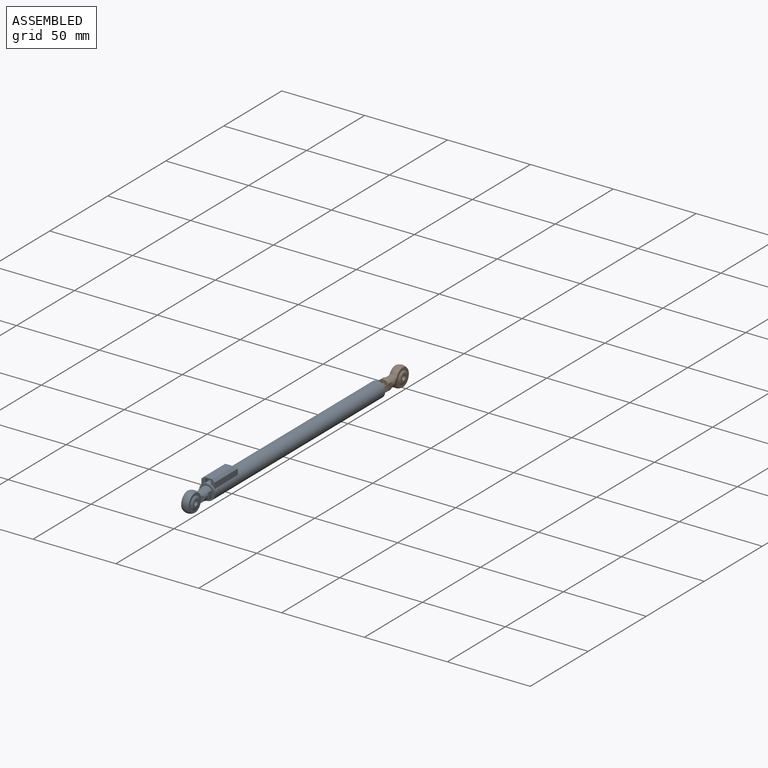
[diagram: assembled view]
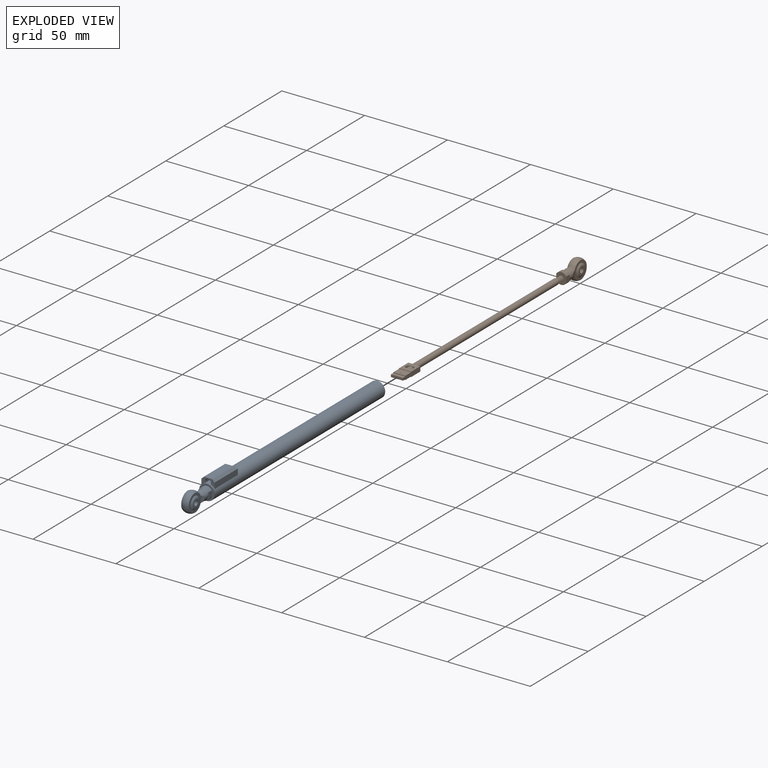
[diagram: exploded view]
GUIDED TOUR — MATED ASSEMBLY WITH SUBASSEMBLIES (Onshape document 57600a2ce4b0f5850b23be8d, AutoMate assembly 57600a2ce4b0f5850b23be8d_10d2f476a3a404ebe90e0509_c56ef4af8d43805079e80a9f_default)

This assembly has 10 component occurrences arranged in 2 top-level units: 0 individual components plus 2 subassemblies (S0, S1). The tour has two levels: first the top level, where each subassembly is treated as one rigid unit; then each subassembly is toured internally in its own section (nesting deeper than one subassembly level is flattened into its subassembly's section).

Components are labeled P0..P9 across the whole record; subassembly units are labeled S0..S1. A mate is a constraint between two units; its type names the relative motion it leaves free:
  FASTENED — locks the two components together rigidly (no relative motion),
  SLIDER — leaves translation along the listed axis free.
Axis/direction vectors are unit vectors and 'through' points are millimeter coordinates, both in the assembly's world frame.

TOP-LEVEL MATES (between units; each subassembly's internal mates are listed in its own section)
  1. SLIDER "Slider 1": S1 <-> S0, axis (0.000, -1.000, 0.000) through (-0.16, -10.88, 0.18) mm

TOP-LEVEL ASSEMBLY ORDER
  1. S0 — the base component [order verified]
  2. S1 [order verified]
Order-tag legend:
  [order verified] — this step's position reverses a verified removal order: the component was checked to insert without passing through the ones already placed.

Of the 10 component occurrences, 5 carry the full construction recipe — the FeatureScript program that regenerates the part's solid from scratch; the rest are supplied as boundary geometry only. Each toured unit is shown spotlighted twice — assembled, then exploded with a leader line back to its socket (green = recipe-attached component, orange = geometry-only, blue = subassembly unit; the rest desaturated gray).
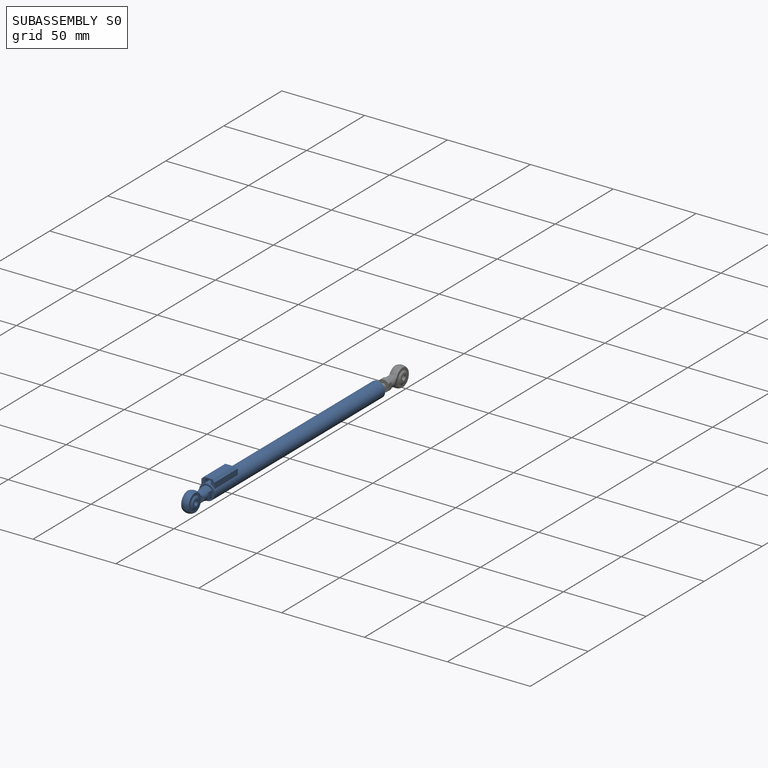
[diagram: subassembly S0 — assembled]
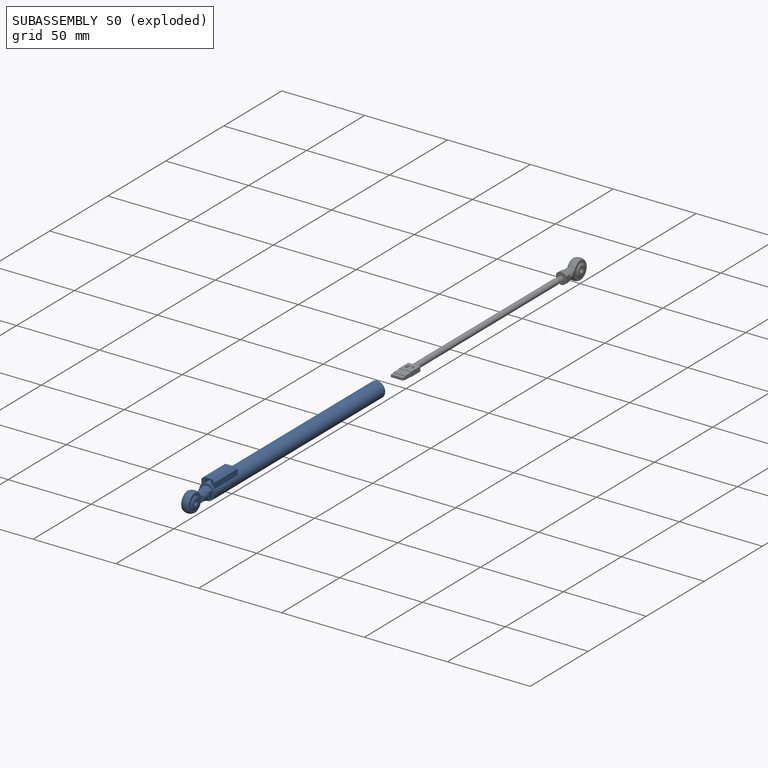
[diagram: subassembly S0 — exploded]
SUBASSEMBLY S0 — 7 components (P0, P3, P4, P5, P6, P7, P9), of which 4 recipe-attached; toured below.
Held by: SLIDER mate "Slider 1" to S1.
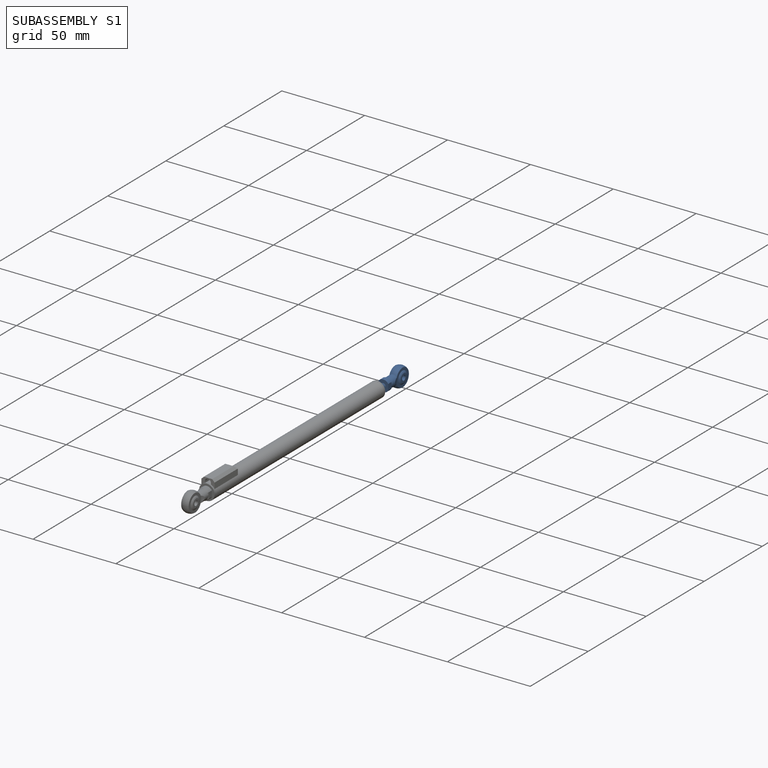
[diagram: subassembly S1 — assembled]
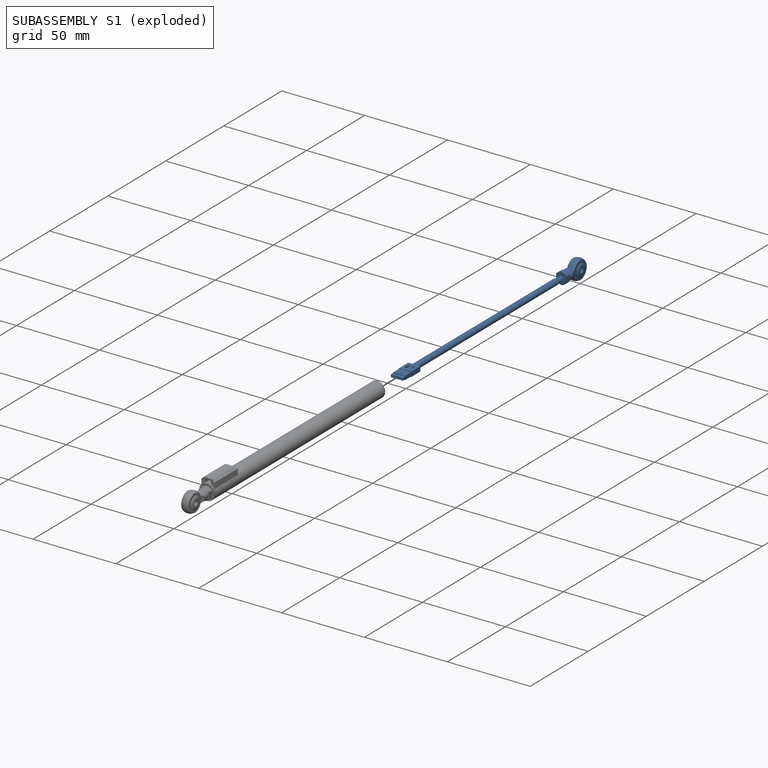
[diagram: subassembly S1 — exploded]
SUBASSEMBLY S1 — 3 components (P1, P2, P8), of which 1 recipe-attached; toured below.
Held by: SLIDER mate "Slider 1" to S0.
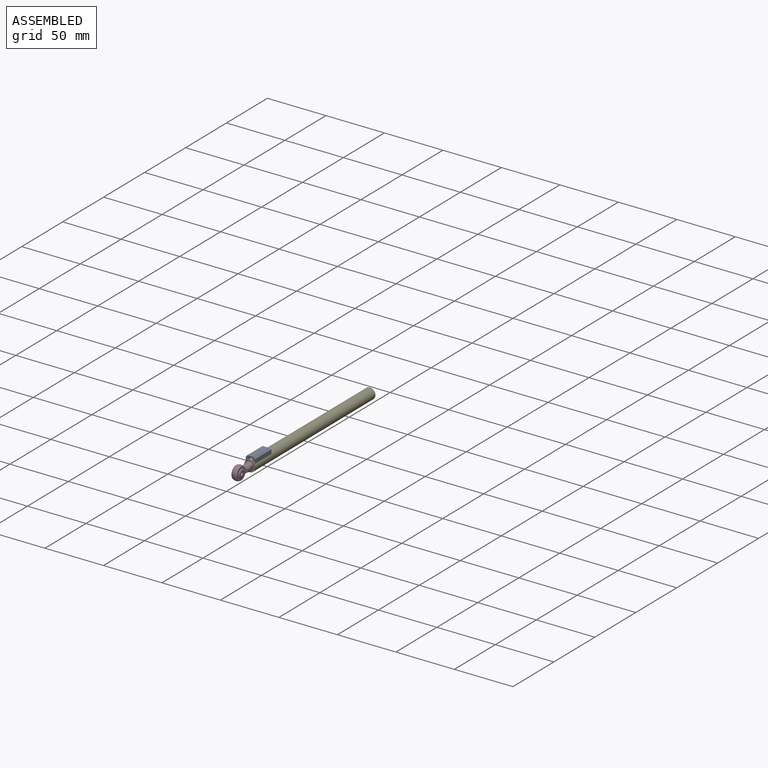
[diagram: subassembly S0 — assembled view]
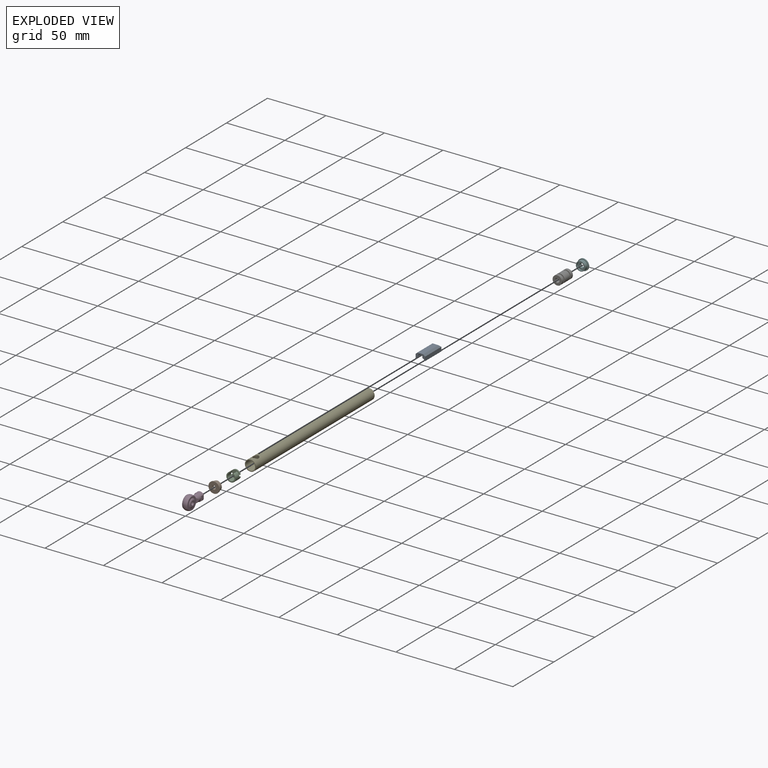
[diagram: subassembly S0 — exploded view]
SUBASSEMBLY S0 TOUR — 7 components, shown here in isolation at its own camera.

INTERNAL MATES
  1. FASTENED "Fastened 5": P6 <-> P9, direction (0.000, 1.000, 0.000) through (-0.16, 106.62, 0.18) mm
  2. FASTENED "Fastened 1": P0 <-> P3, direction (0.000, -1.000, 0.000) through (-0.16, -20.38, 0.18) mm
  3. FASTENED "Fastened 6": P7 <-> P6, direction (0.000, -1.000, 0.000) through (-0.16, 124.62, 0.18) mm
  4. FASTENED "Fastened 4": P3 <-> P5, direction (0.000, -1.000, 0.000) through (-0.16, -21.38, 0.18) mm
  5. FASTENED "Fastened 3": P6 <-> P3, direction (0.000, -1.000, 0.000) through (-0.16, -20.38, 0.18) mm
  6. FASTENED "Fastened 2": P4 <-> P3, direction (0.000, -1.000, 0.000) through (-0.16, -17.38, 0.18) mm
  7. FASTENED "Fastened 1": P0 <-> P3, direction (0.000, -1.000, 0.000) through (-0.16, -20.38, 0.18) mm
  8. FASTENED "Fastened 3": P6 <-> P3, direction (0.000, -1.000, 0.000) through (-0.16, -20.38, 0.18) mm
  9. FASTENED "Fastened 4": P3 <-> P5, direction (0.000, -1.000, 0.000) through (-0.16, -21.38, 0.18) mm
  10. FASTENED "Fastened 6": P7 <-> P6, direction (0.000, -1.000, 0.000) through (-0.16, 124.62, 0.18) mm
  11. FASTENED "Fastened 2": P4 <-> P3, direction (0.000, -1.000, 0.000) through (-0.16, -17.38, 0.18) mm
  12. FASTENED "Fastened 5": P6 <-> P9, direction (0.000, 1.000, 0.000) through (-0.16, 106.62, 0.18) mm

ASSEMBLY ORDER (within the subassembly)
  1. P6 — the base component [order heuristic]
  2. P4 — core [order heuristic]
  3. P9 — core [order heuristic]
  4. P3 [order verified]
  5. P7 [order verified]
  6. P0 [order verified]
  7. P5 [order verified]
(P3, P7 verified with a relaxed clearance tolerance: the source model stores slight part interference there.)
Order-tag legend:
  [order verified] — this step's position reverses a verified removal order: the component was checked to insert without passing through the ones already placed.
  [order heuristic] — the first 3 components form the assembly's core: parts whose collision-free extraction could not be verified, listed in mate-graph order.
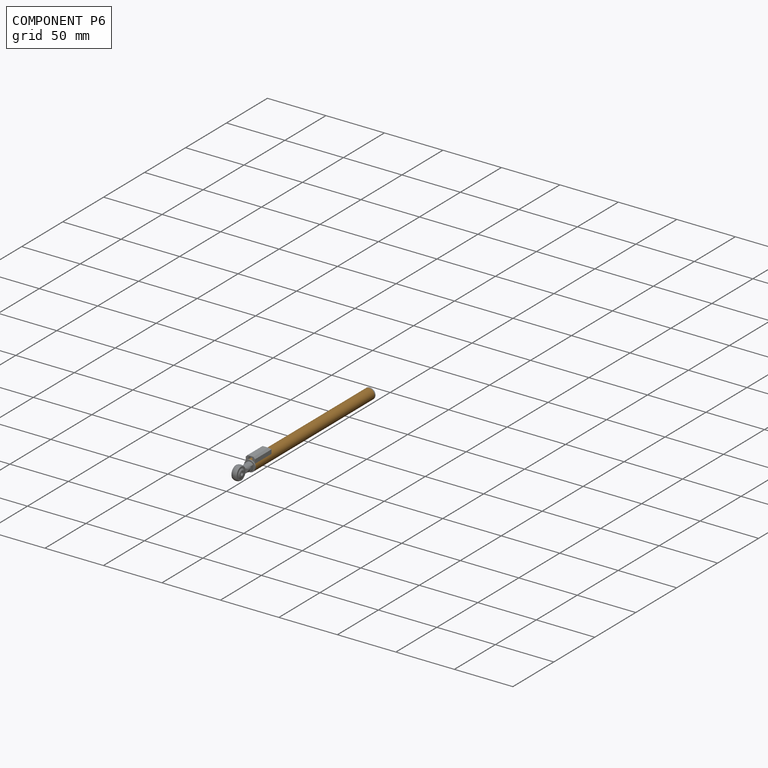
[diagram: component P6 — assembled]
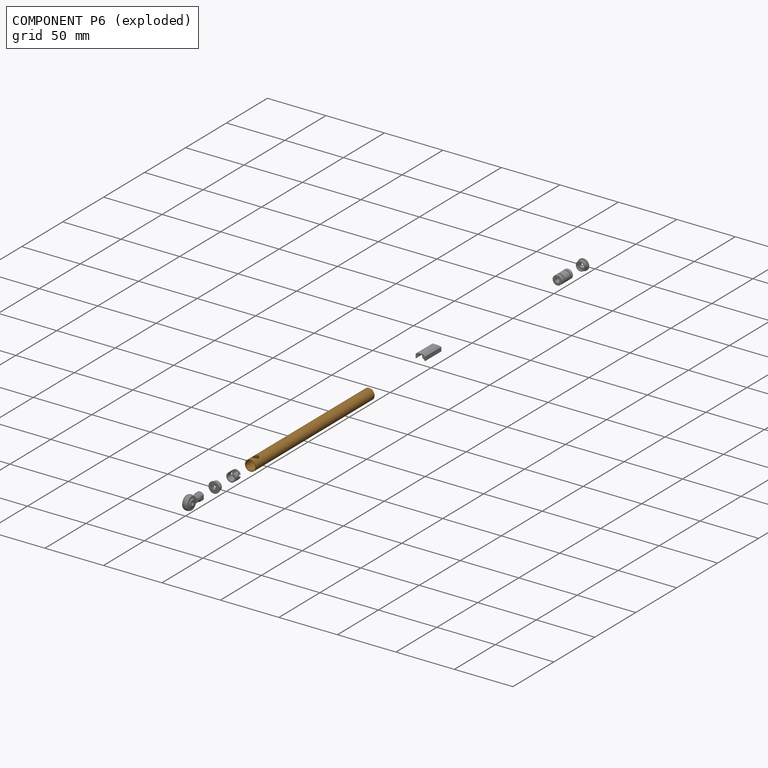
[diagram: component P6 — exploded]
COMPONENT P6 — geometry summary (no construction recipe available for this part):
  bounding box: 145.0 x 9.4 x 9.4 mm
  B-rep topology: 1 solid, 122 faces, 592 edges
  volume: 3434 mm^3 (27% of its bounding box)
  symmetry: 4-fold rotationally symmetric about the y axis; mirror-symmetric across its z mid-plane
Held by: FASTENED mate "Fastened 5" to P9; FASTENED mate "Fastened 6" to P7; FASTENED mate "Fastened 3" to P3; FASTENED mate "Fastened 3" to P3; FASTENED mate "Fastened 6" to P7; FASTENED mate "Fastened 5" to P9.
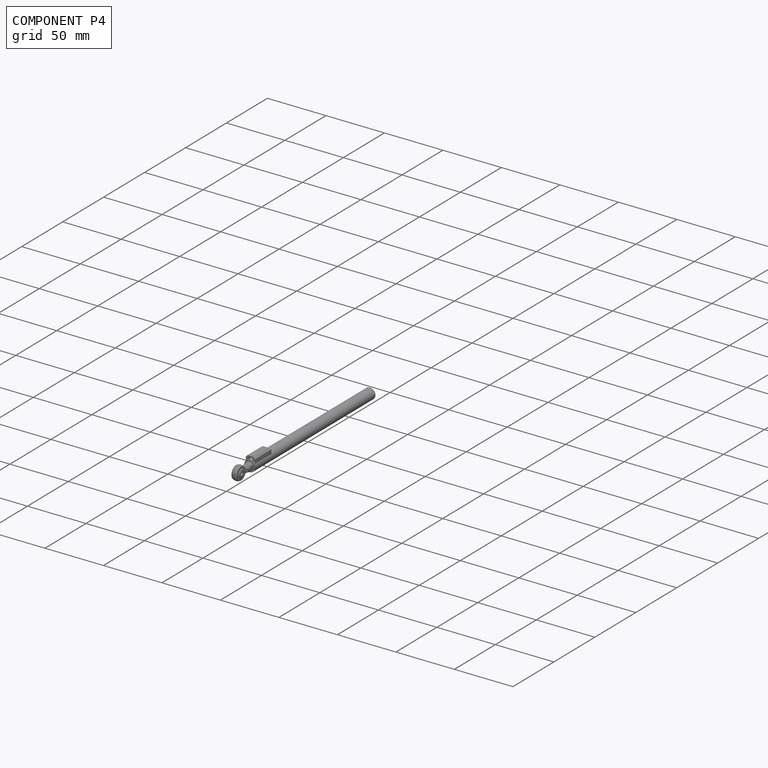
[diagram: component P4 — assembled]
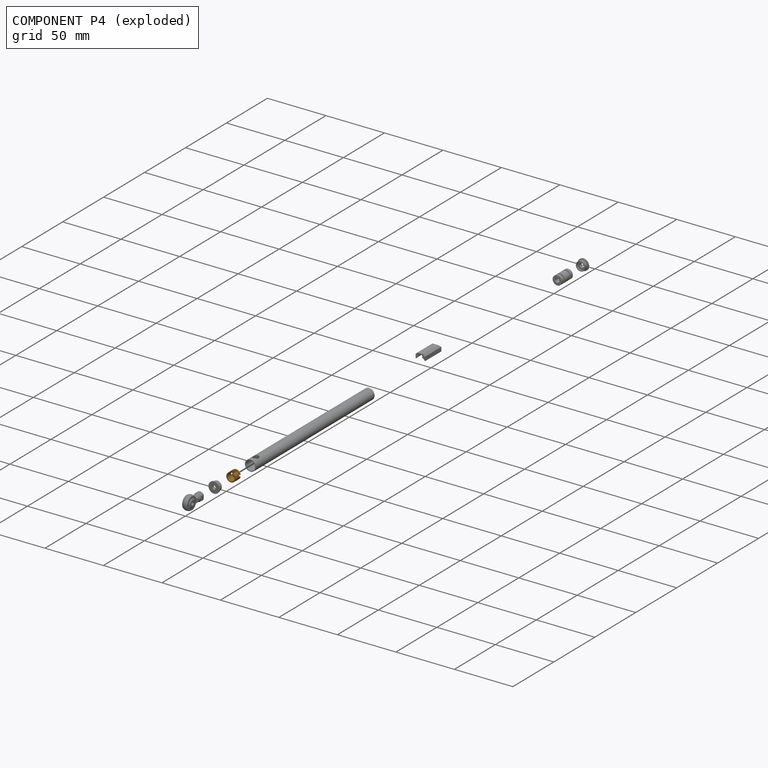
[diagram: component P4 — exploded]
COMPONENT P4 — geometry summary (no construction recipe available for this part):
  bounding box: 7.9 x 7.9 x 6.5 mm
  B-rep topology: 1 solid, 16 faces, 84 edges
  volume: 129 mm^3 (32% of its bounding box)
  symmetry: mirror-symmetric across its x mid-plane
Held by: FASTENED mate "Fastened 2" to P3; FASTENED mate "Fastened 2" to P3.
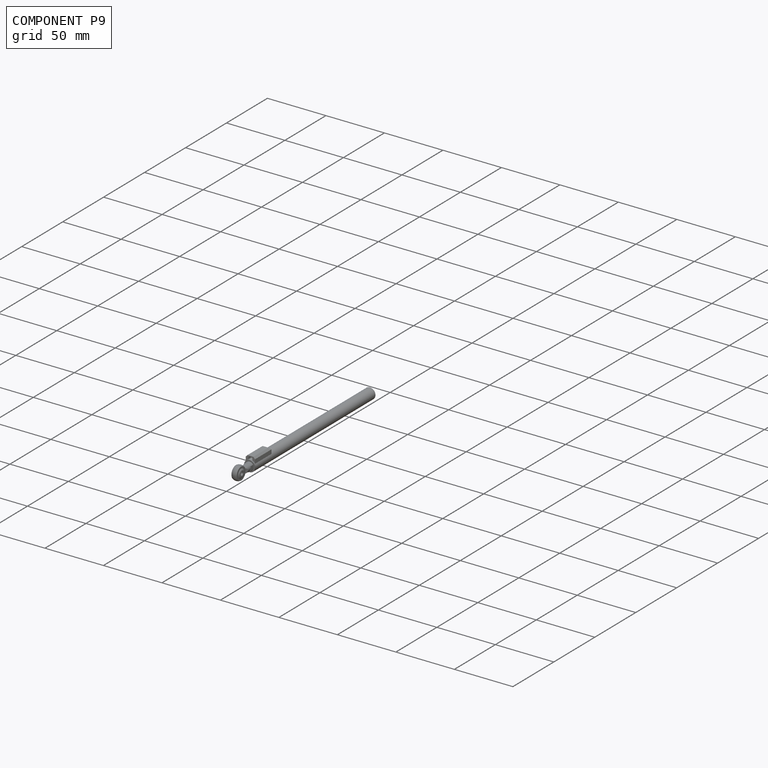
[diagram: component P9 — assembled]
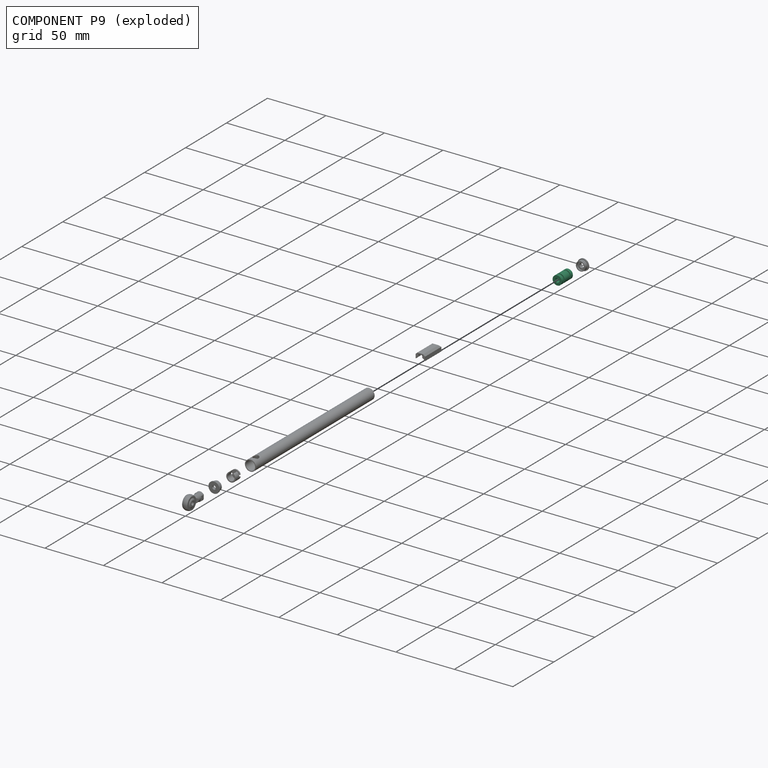
[diagram: component P9 — exploded]
COMPONENT P9 — recipe-attached (CADFS 00157070, mesh-verified: the recipe's output STEP matches this component's geometry to below the mesh-comparison resolution (tessellation chordal tolerance ~0.0263 mm)).
Held by: FASTENED mate "Fastened 5" to P6; FASTENED mate "Fastened 5" to P6.
Construction recipe (FeatureScript — the CAD program that rebuilds this solid; sketch coordinates are in the units given by the * unit suffixes, e.g. mm):

FeatureScript 1511;
import(path : "onshape/std/geometry.fs", version : "1511.0");
import(path : "onshape/std/common.fs", version : "1511.0");
const mm = millimeter;
const VERTEX = EntityType.VERTEX;
const EDGE = EntityType.EDGE;
const FACE = EntityType.FACE;
const BODY = EntityType.BODY;
function v(x, y){return vector(x, y);}
function OD(order){return orderDisambiguation(order);}
function OSD(set){return originalSetDisambiguation(set);}
function TD(topology){return topologyDisambiguation(topology);}
function TDD(query){return trueDependencyDisambiguation(query);}
function sQuery(a, b, c) {return sketchEntityQuery(a, b, c);}

annotation { "Feature Type Name" : "Feature", "Feature Type Description" : "" }
export const myFeature = defineFeature(function(context is Context, id is Id, definition is map)
    precondition{}
    {
        {
            var Q0;
            Q0=qCreatedBy(makeId("Right.planeOp"),FACE);
            var sketch = newSketch(context, id + "F0", { "sketchPlane" : qUnion([Q0])});
            skLineSegment(sketch, "E0", {"start": v(11.47, 0) * mm, "end": v(0, 0) * mm, "construction": true});
            skLineSegment(sketch, "E1", {"start": v(12.1, 1.85) * mm, "end": v(0, 1.85) * mm});
            skLineSegment(sketch, "E2", {"start": v(12.1, 1.85) * mm, "end": v(12.1, 3.25) * mm});
            skLineSegment(sketch, "E3", {"start": v(13.5, 3.25) * mm, "end": v(12.1, 3.25) * mm});
            skLineSegment(sketch, "E4", {"start": v(13.5, 3.25) * mm, "end": v(13.5, 3.95) * mm});
            skLineSegment(sketch, "E5", {"start": v(11, 3.95) * mm, "end": v(13.5, 3.95) * mm});
            skLineSegment(sketch, "E6", {"start": v(11, 3.95) * mm, "end": v(11, 2.95) * mm});
            skLineSegment(sketch, "E7", {"start": v(10, 2.95) * mm, "end": v(11, 2.95) * mm});
            skLineSegment(sketch, "E8", {"start": v(2.5, 2.95) * mm, "end": v(2.5, 3.95) * mm});
            skLineSegment(sketch, "E9", {"start": v(0, 3.95) * mm, "end": v(2.5, 3.95) * mm});
            skLineSegment(sketch, "E10", {"start": v(0, 3.95) * mm, "end": v(0, 1.85) * mm});
            skLineSegment(sketch, "E11", {"start": v(3.5, 2.95) * mm, "end": v(3.5, 3.95) * mm});
            skLineSegment(sketch, "E12", {"start": v(3.5, 3.95) * mm, "end": v(10, 3.95) * mm});
            skLineSegment(sketch, "E13", {"start": v(10, 3.95) * mm, "end": v(10, 2.95) * mm});
            skLineSegment(sketch, "E14.trimOffspring", {"start": v(3.5, 2.95) * mm, "end": v(2.5, 2.95) * mm});
            skSolve(sketch);
        }
        {
            var Q0;
            Q0=makeQuery(id+"F0.imprint","IMPRINT",FACE,{"disambiguationData":[TD([[makeQuery(id+"F0.imprint","IMPRINT",EDGE,{"derivedFrom":sQuery(id+"F0.wireOp",EDGE,"E1")}),-1.0]])]});
            var Q1;
            Q1=sQuery(id+"F0.wireOp",EDGE,"E0");
            revolve(context, id + "F1", {"entities" : qUnion([Q0]), "axis" : qUnion([Q1]), "revolveType" : RevolveType.FULL});
        }
    });
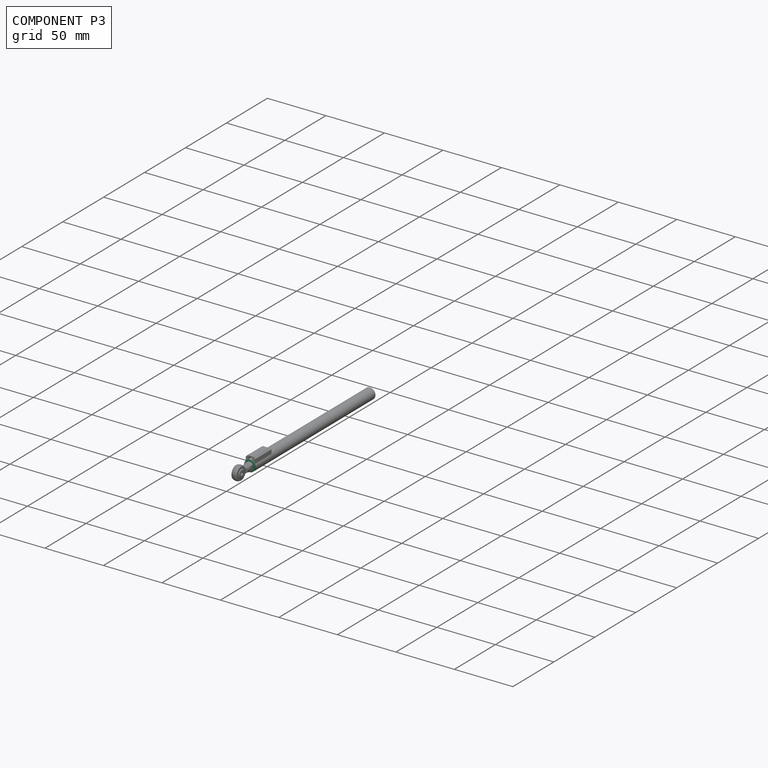
[diagram: component P3 — assembled]
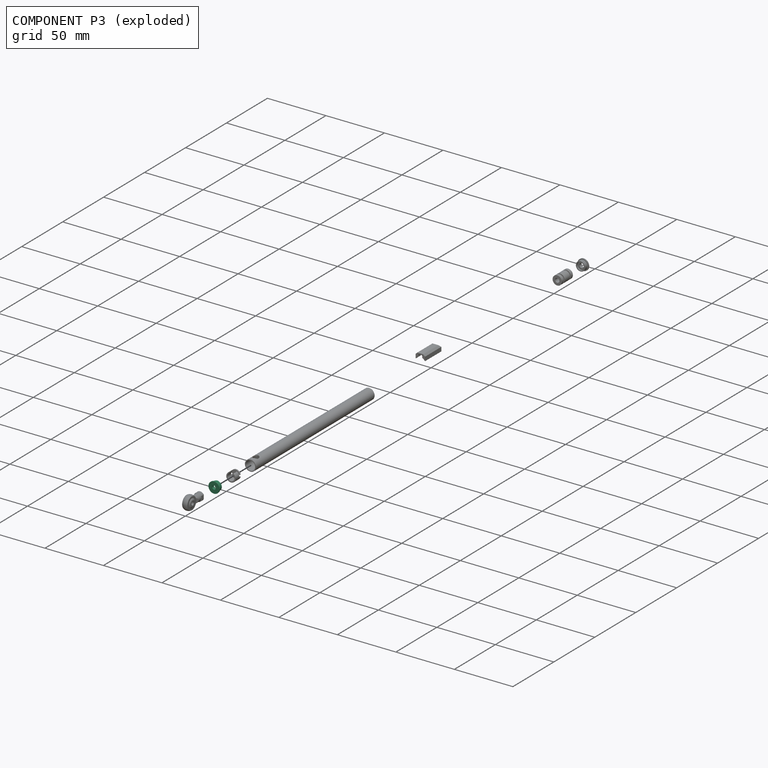
[diagram: component P3 — exploded]
COMPONENT P3 — recipe-attached (CADFS 00160693, mesh-verified: the recipe's output STEP matches this component's geometry to below the mesh-comparison resolution (tessellation chordal tolerance ~0.0208 mm)).
Held by: FASTENED mate "Fastened 1" to P0; FASTENED mate "Fastened 4" to P5; FASTENED mate "Fastened 3" to P6; FASTENED mate "Fastened 2" to P4; FASTENED mate "Fastened 1" to P0; FASTENED mate "Fastened 3" to P6; FASTENED mate "Fastened 4" to P5; FASTENED mate "Fastened 2" to P4.
Construction recipe (FeatureScript — the CAD program that rebuilds this solid; sketch coordinates are in the units given by the * unit suffixes, e.g. mm):

FeatureScript 1511;
import(path : "onshape/std/geometry.fs", version : "1511.0");
import(path : "onshape/std/common.fs", version : "1511.0");
const mm = millimeter;
const VERTEX = EntityType.VERTEX;
const EDGE = EntityType.EDGE;
const FACE = EntityType.FACE;
const BODY = EntityType.BODY;
function v(x, y){return vector(x, y);}
function OD(order){return orderDisambiguation(order);}
function OSD(set){return originalSetDisambiguation(set);}
function TD(topology){return topologyDisambiguation(topology);}
function TDD(query){return trueDependencyDisambiguation(query);}
function sQuery(a, b, c) {return sketchEntityQuery(a, b, c);}

annotation { "Feature Type Name" : "Feature", "Feature Type Description" : "" }
export const myFeature = defineFeature(function(context is Context, id is Id, definition is map)
    precondition{}
    {
        {
            var Q0;
            Q0=qCreatedBy(makeId("Right.planeOp"),FACE);
            var sketch = newSketch(context, id + "F0", { "sketchPlane" : qUnion([Q0])});
            skLineSegment(sketch, "E0", {"start": v(11.47, 0) * mm, "end": v(0, 0) * mm, "construction": true});
            skLineSegment(sketch, "E1", {"start": v(1.5, 1.6) * mm, "end": v(0, 1.6) * mm});
            skLineSegment(sketch, "E2", {"start": v(1.5, 1.6) * mm, "end": v(1.5, 2.9) * mm});
            skLineSegment(sketch, "E3", {"start": v(4, 2.9) * mm, "end": v(1.5, 2.9) * mm});
            skLineSegment(sketch, "E4", {"start": v(4, 2.9) * mm, "end": v(4, 3.95) * mm});
            skLineSegment(sketch, "E5", {"start": v(1, 3.95) * mm, "end": v(4, 3.95) * mm});
            skLineSegment(sketch, "E6", {"start": v(1, 3.95) * mm, "end": v(1, 4.7) * mm});
            skLineSegment(sketch, "E7", {"start": v(0, 4.7) * mm, "end": v(1, 4.7) * mm});
            skLineSegment(sketch, "E8", {"start": v(0, 4.7) * mm, "end": v(0, 1.6) * mm});
            skSolve(sketch);
        }
        {
            var Q0;
            Q0=makeQuery(id+"F0.imprint","IMPRINT",FACE,{"disambiguationData":[TD([[makeQuery(id+"F0.imprint","IMPRINT",EDGE,{"derivedFrom":sQuery(id+"F0.wireOp",EDGE,"E1")}),-1.0]])]});
            var Q1;
            Q1=sQuery(id+"F0.wireOp",EDGE,"E0");
            revolve(context, id + "F1", {"entities" : qUnion([Q0]), "axis" : qUnion([Q1]), "revolveType" : RevolveType.FULL});
        }
    });
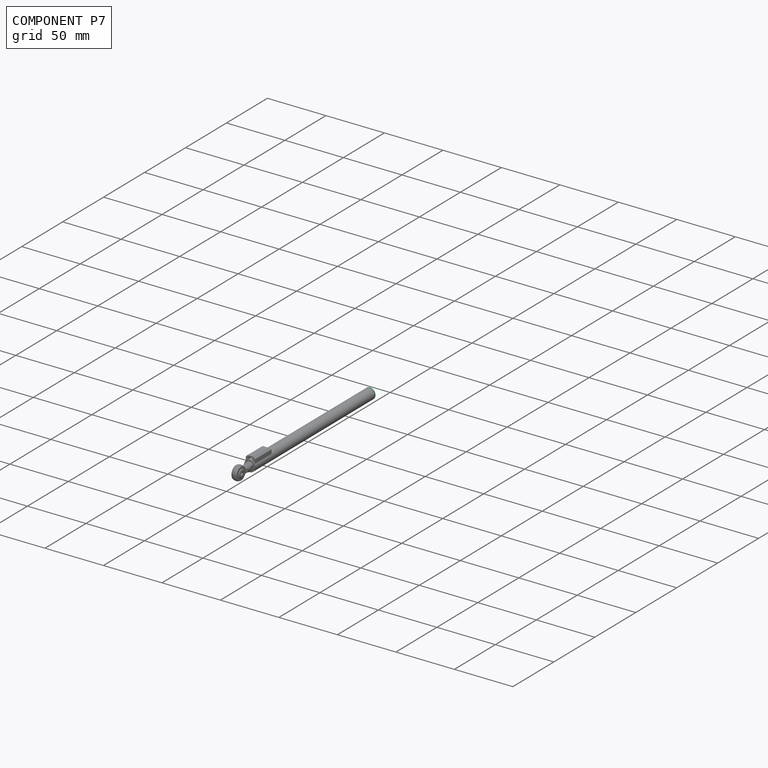
[diagram: component P7 — assembled]
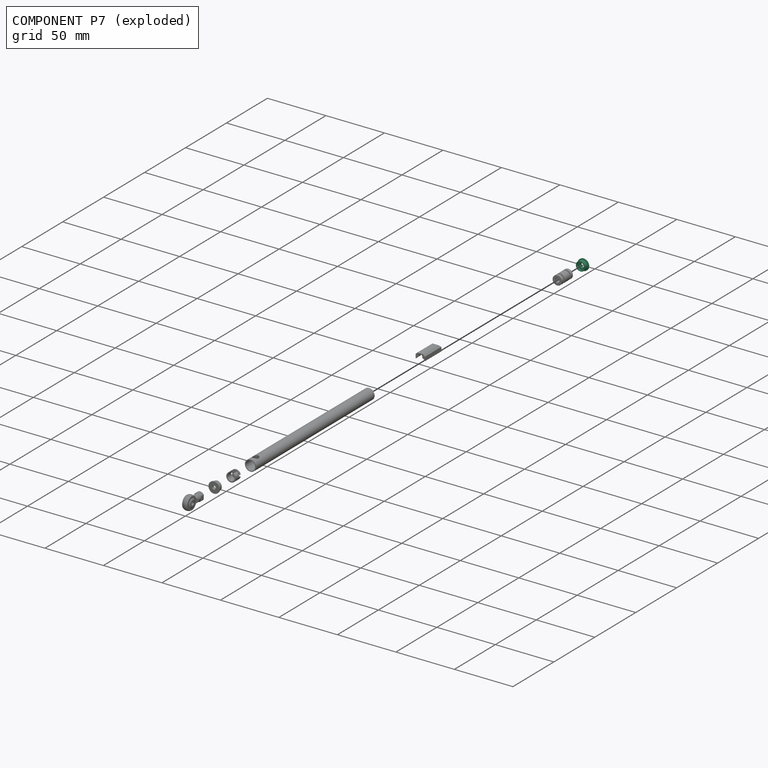
[diagram: component P7 — exploded]
COMPONENT P7 — recipe-attached (CADFS 00157107, mesh-verified: the recipe's output STEP matches this component's geometry to below the mesh-comparison resolution (tessellation chordal tolerance ~0.0208 mm)).
Held by: FASTENED mate "Fastened 6" to P6; FASTENED mate "Fastened 6" to P6.
Construction recipe (FeatureScript — the CAD program that rebuilds this solid; sketch coordinates are in the units given by the * unit suffixes, e.g. mm):

FeatureScript 1511;
import(path : "onshape/std/geometry.fs", version : "1511.0");
import(path : "onshape/std/common.fs", version : "1511.0");
const mm = millimeter;
const VERTEX = EntityType.VERTEX;
const EDGE = EntityType.EDGE;
const FACE = EntityType.FACE;
const BODY = EntityType.BODY;
function v(x, y){return vector(x, y);}
function OD(order){return orderDisambiguation(order);}
function OSD(set){return originalSetDisambiguation(set);}
function TD(topology){return topologyDisambiguation(topology);}
function TDD(query){return trueDependencyDisambiguation(query);}
function sQuery(a, b, c) {return sketchEntityQuery(a, b, c);}

annotation { "Feature Type Name" : "Feature", "Feature Type Description" : "" }
export const myFeature = defineFeature(function(context is Context, id is Id, definition is map)
    precondition{}
    {
        {
            var Q0;
            Q0=qCreatedBy(makeId("Right.planeOp"),FACE);
            var sketch = newSketch(context, id + "F0", { "sketchPlane" : qUnion([Q0])});
            skLineSegment(sketch, "E0", {"start": v(11.47, 0) * mm, "end": v(0, 0) * mm, "construction": true});
            skLineSegment(sketch, "E1", {"start": v(2.6, 1.9) * mm, "end": v(0, 1.9) * mm});
            skLineSegment(sketch, "E2", {"start": v(2.6, 1.9) * mm, "end": v(2.6, 3.25) * mm});
            skLineSegment(sketch, "E3", {"start": v(4, 3.25) * mm, "end": v(2.6, 3.25) * mm});
            skLineSegment(sketch, "E4", {"start": v(4, 3.25) * mm, "end": v(4, 3.95) * mm});
            skLineSegment(sketch, "E5", {"start": v(1, 3.95) * mm, "end": v(4, 3.95) * mm});
            skLineSegment(sketch, "E6", {"start": v(1, 3.95) * mm, "end": v(1, 4.7) * mm});
            skLineSegment(sketch, "E7", {"start": v(0, 4.7) * mm, "end": v(1, 4.7) * mm});
            skLineSegment(sketch, "E8", {"start": v(0, 4.7) * mm, "end": v(0, 1.9) * mm});
            skSolve(sketch);
        }
        {
            var Q0;
            Q0=makeQuery(id+"F0.imprint","IMPRINT",FACE,{"disambiguationData":[TD([[makeQuery(id+"F0.imprint","IMPRINT",EDGE,{"derivedFrom":sQuery(id+"F0.wireOp",EDGE,"E1")}),-1.0]])]});
            var Q1;
            Q1=sQuery(id+"F0.wireOp",EDGE,"E0");
            revolve(context, id + "F1", {"entities" : qUnion([Q0]), "axis" : qUnion([Q1]), "revolveType" : RevolveType.FULL});
        }
    });
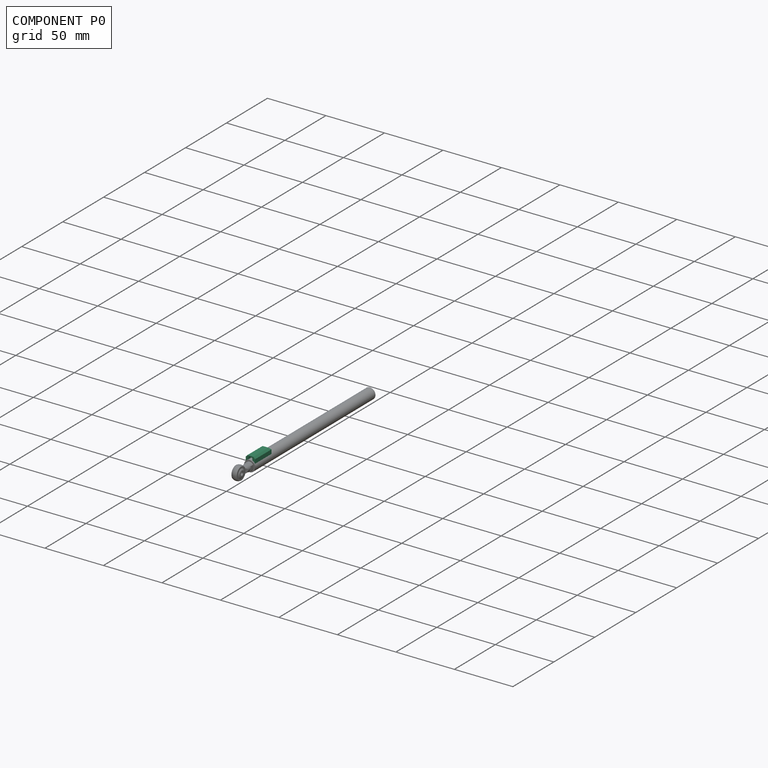
[diagram: component P0 — assembled]
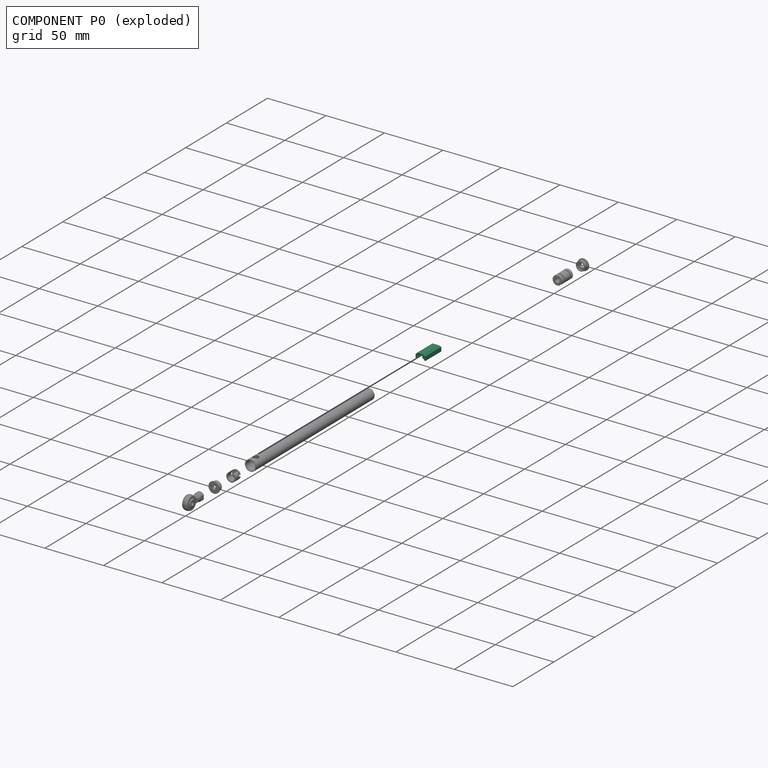
[diagram: component P0 — exploded]
COMPONENT P0 — recipe-attached (CADFS 00165903, mesh-verified: the recipe's output STEP matches this component's geometry to below the mesh-comparison resolution (tessellation chordal tolerance ~0.0332 mm)).
Held by: FASTENED mate "Fastened 1" to P3; FASTENED mate "Fastened 1" to P3.
Construction recipe (FeatureScript — the CAD program that rebuilds this solid; sketch coordinates are in the units given by the * unit suffixes, e.g. mm):

FeatureScript 1511;
import(path : "onshape/std/geometry.fs", version : "1511.0");
import(path : "onshape/std/common.fs", version : "1511.0");
const mm = millimeter;
const VERTEX = EntityType.VERTEX;
const EDGE = EntityType.EDGE;
const FACE = EntityType.FACE;
const BODY = EntityType.BODY;
function v(x, y){return vector(x, y);}
function OD(order){return orderDisambiguation(order);}
function OSD(set){return originalSetDisambiguation(set);}
function TD(topology){return topologyDisambiguation(topology);}
function TDD(query){return trueDependencyDisambiguation(query);}
function sQuery(a, b, c) {return sketchEntityQuery(a, b, c);}

annotation { "Feature Type Name" : "Feature", "Feature Type Description" : "" }
export const myFeature = defineFeature(function(context is Context, id is Id, definition is map)
    precondition{}
    {
        {
            assignVariable(context, id + "F0", {"name" : "Main_Length", "anyValue" : 20});
        }
        {
            assignVariable(context, id + "F1", {"name" : "Bore_Diam", "anyValue" : 3.5});
        }
        {
            assignVariable(context, id + "F2", {"name" : "Bore_Offset", "anyValue" : 0.5});
        }
        {
            assignVariable(context, id + "F3", {"name" : "Chamfer", "anyValue" : 1.5});
        }
        {
            var Q0;
            Q0=qCreatedBy(makeId("Front.planeOp"),FACE);
            var sketch = newSketch(context, id + "F4", { "sketchPlane" : qUnion([Q0])});
            skArc(sketch, "E0", {"start": v(4, 2.47) * mm, "mid": v(0, 4.7) * mm, "end": v(-4, 2.47) * mm});
            skLineSegment(sketch, "E1.bottom", {"start": v(4, 7.47) * mm, "end": v(-4, 7.47) * mm});
            skLineSegment(sketch, "E1.left", {"start": v(4, 7.47) * mm, "end": v(4, 2.47) * mm});
            skLineSegment(sketch, "E1.right", {"start": v(-4, 7.47) * mm, "end": v(-4, 2.47) * mm});
            skPoint(sketch, "E1.middle", {"position": v(0, 4.97) * mm});
            skArc(sketch, "E2", {"start": v(1.75, 5.22) * mm, "mid": v(0, 6.97) * mm, "end": v(-1.75, 5.22) * mm});
            skLineSegment(sketch, "E3", {"start": v(-1.75, 5.22) * mm, "end": v(-1.75, 4.36) * mm});
            skLineSegment(sketch, "E4", {"start": v(1.75, 5.22) * mm, "end": v(1.75, 4.36) * mm});
            skSolve(sketch);
        }
        {
            var Q0;
            Q0=makeQuery(id+"F4.imprint","IMPRINT",FACE,{"disambiguationData":[TD([[makeQuery(id+"F4.imprint","IMPRINT",EDGE,{"derivedFrom":sQuery(id+"F4.wireOp",EDGE,"E0")}),-1.0]])]});
            var Q1;
            {var subQ0=sQuery(id+"F4.wireOp",EDGE,"E2");var subQ1=sQuery(id+"F4.wireOp",EDGE,"E0");var subQ2=makeQuery(id+"F4.imprint","INTERSECT",VERTEX,{"disambiguationData":[OD(0.0)],"derivedFrom":[subQ1,subQ0]});Q1=makeQuery(id+"F4.imprint","IMPRINT",FACE,{"disambiguationData":[TD([[makeQuery(id+"F4.imprint","IMPRINT",EDGE,{"disambiguationData":[TD([[subQ2,-1.0]])],"derivedFrom":subQ1}),-1.0]])]});}
            var Q2;
            Q2=makeQuery(id+"F4.imprint","IMPRINT",FACE,{"disambiguationData":[TD([[makeQuery(id+"F4.imprint","IMPRINT",EDGE,{"derivedFrom":sQuery(id+"F4.wireOp",EDGE,"E2")}),1.0]])]});
            extrude(context, id + "F5", {"entities" : qUnion([Q0, Q1, Q2]), "oppositeDirection" : true, "depth" : (getVariable(context, 'Main_Length')) * mm});
        }
        {
            var Q0;
            Q0=makeQuery(id+"F5.opExtrude","SWEPT_EDGE",EDGE,{"disambiguationData":[OSD([sQuery(id+"F4.wireOp",EDGE,"E1.bottom"),sQuery(id+"F4.wireOp",EDGE,"E1.right")])]});
            var Q1;
            Q1=makeQuery(id+"F5.opExtrude","SWEPT_EDGE",EDGE,{"disambiguationData":[OSD([sQuery(id+"F4.wireOp",EDGE,"E1.bottom"),sQuery(id+"F4.wireOp",EDGE,"E1.left")])]});
            chamfer(context, id + "F6", {"entities" : qUnion([Q0, Q1]), "width" : (getVariable(context, 'Chamfer')) * mm, "tangentPropagation" : true});
        }
        {
            var Q0;
            Q0=makeQuery(id+"F5.opExtrude","CAP_EDGE",EDGE,{"disambiguationData":[OSD([sQuery(id+"F4.wireOp",EDGE,"E1.bottom")])],"isStart":false});
            chamfer(context, id + "F7", {"entities" : qUnion([Q0]), "width" : 1.5 * mm, "tangentPropagation" : true});
        }
        {
            var Q0;
            Q0=makeQuery(id+"F5.opExtrude","SWEPT_FACE",FACE,{"disambiguationData":[OSD([sQuery(id+"F4.wireOp",EDGE,"E1.bottom")])]});
            cPlane(context, id + "F8", {"entities" : qUnion([Q0]), "cplaneType" : CPlaneType.OFFSET, "offset" : (getVariable(context, 'Bore_Offset') + getVariable(context, 'Bore_Diam') / 2) * mm, "oppositeDirection" : true, "width" : 150 * mm, "height" : 150 * mm});
        }
        {
            var Q0;
            Q0=qCreatedBy(id+"F8.planeOp",FACE);
            var sketch = newSketch(context, id + "F9", { "sketchPlane" : qUnion([Q0])});
            skLineSegment(sketch, "E5", {"start": v(-1.75, 0) * mm, "end": v(-1.75, 11.25) * mm});
            skLineSegment(sketch, "E6", {"start": v(1.75, 0) * mm, "end": v(1.75, 11.25) * mm});
            skArc(sketch, "E7", {"start": v(1.75, 11.25) * mm, "mid": v(0, 13) * mm, "end": v(-1.75, 11.25) * mm});
            skLineSegment(sketch, "E8", {"start": v(-1.75, 0) * mm, "end": v(1.75, 0) * mm});
            skLineSegment(sketch, "E9", {"start": v(0, 0) * mm, "end": v(0, 13) * mm});
            skSolve(sketch);
        }
        {
            var Q0;
            {var subQ0=sQuery(id+"F9.wireOp",EDGE,"E5");Q0=makeQuery(id+"F9.imprint","IMPRINT",FACE,{"disambiguationData":[TD([[makeQuery(id+"F9.imprint","IMPRINT",EDGE,{"derivedFrom":subQ0}),-1.0]])]});}
            var Q1;
            Q1=sQuery(id+"F9.wireOp",EDGE,"E9");
            revolve(context, id + "F10", {"operationType" : NewBodyOperationType.REMOVE, "entities" : qUnion([Q0]), "axis" : qUnion([Q1]), "revolveType" : RevolveType.FULL, "oppositeDirection" : true});
        }
        {
            var Q0;
            {var subQ0=sQuery(id+"F9.wireOp",EDGE,"E6");Q0=makeQuery(id+"F9.imprint","IMPRINT",FACE,{"disambiguationData":[TD([[makeQuery(id+"F9.imprint","IMPRINT",EDGE,{"derivedFrom":subQ0}),1.0]])]});}
            var Q1;
            {var subQ0=sQuery(id+"F9.wireOp",EDGE,"E5");Q1=makeQuery(id+"F9.imprint","IMPRINT",FACE,{"disambiguationData":[TD([[makeQuery(id+"F9.imprint","IMPRINT",EDGE,{"derivedFrom":subQ0}),-1.0]])]});}
            extrude(context, id + "F11", {"entities" : qUnion([Q0, Q1]), "operationType" : NewBodyOperationType.REMOVE, "endBound" : BoundingType.THROUGH_ALL, "oppositeDirection" : true, "depth" : 25 * mm});
        }
    });
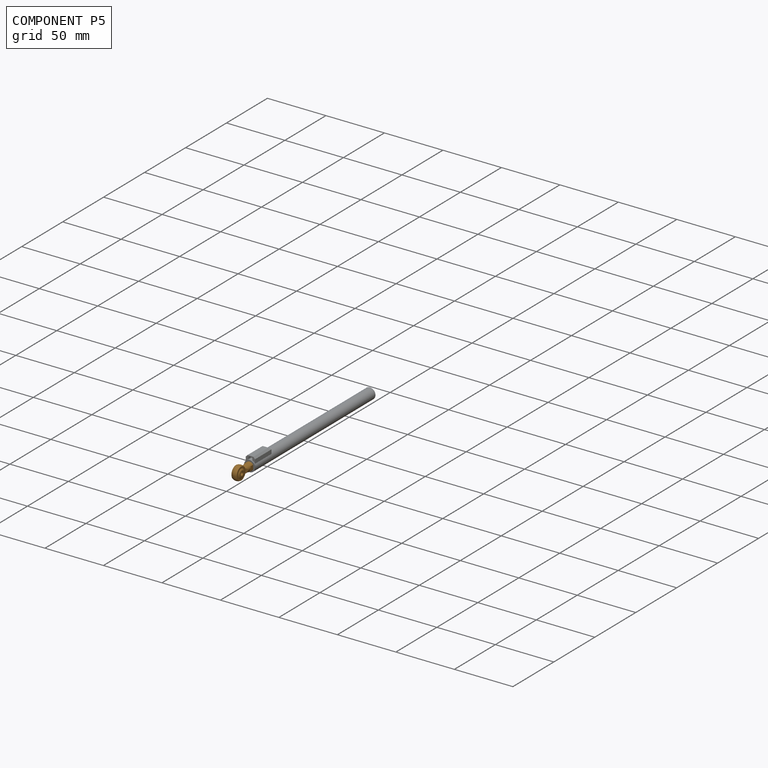
[diagram: component P5 — assembled]
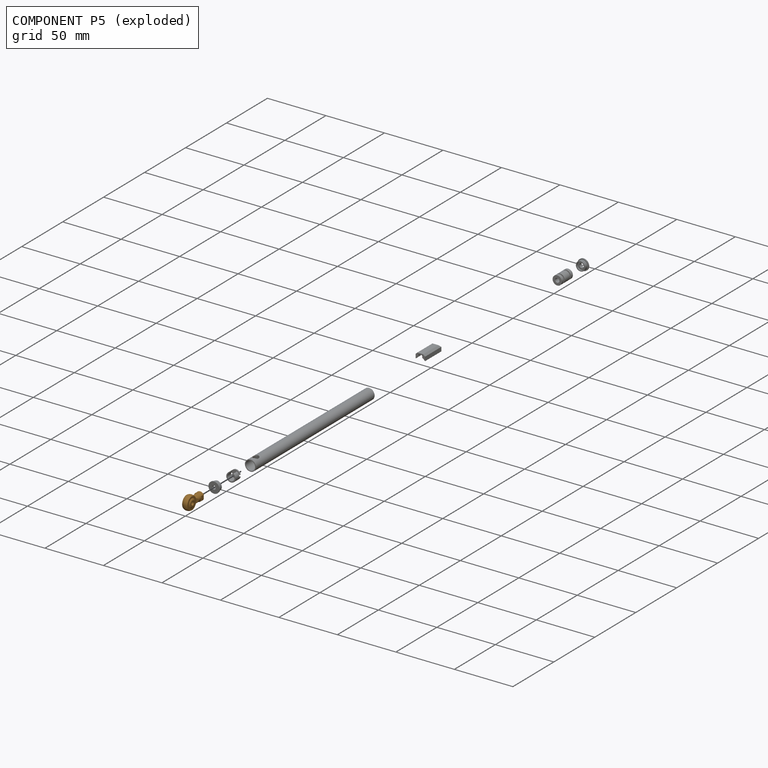
[diagram: component P5 — exploded]
COMPONENT P5 — geometry summary (no construction recipe available for this part):
  bounding box: 18.9 x 10.8 x 6.0 mm
  B-rep topology: 1 solid, 24 faces, 92 edges
  volume: 688 mm^3 (56% of its bounding box)
  symmetry: 2-fold rotationally symmetric about the y axis; mirror-symmetric across its x mid-plane, z mid-plane
Held by: FASTENED mate "Fastened 4" to P3; FASTENED mate "Fastened 4" to P3.
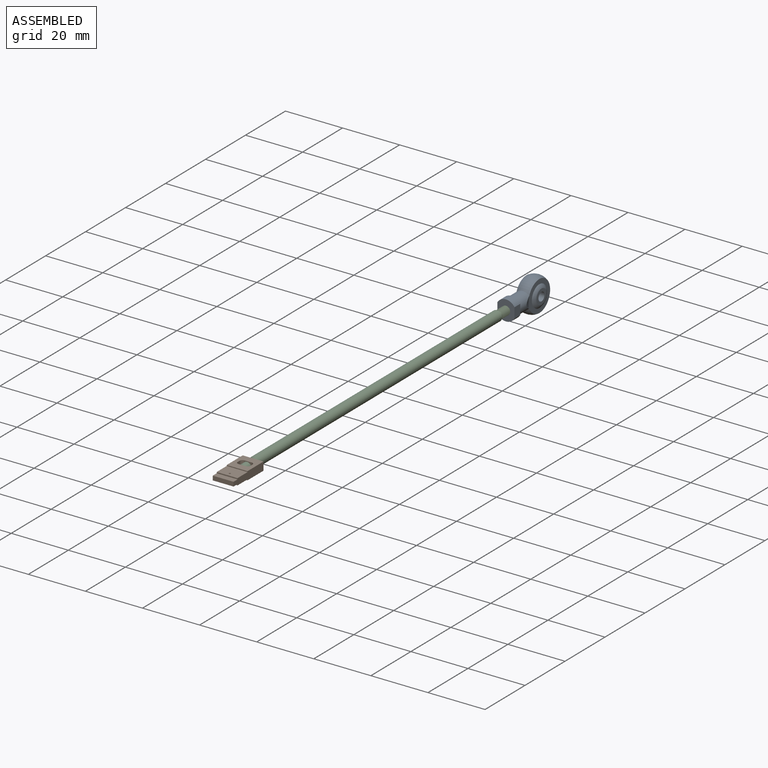
[diagram: subassembly S1 — assembled view]
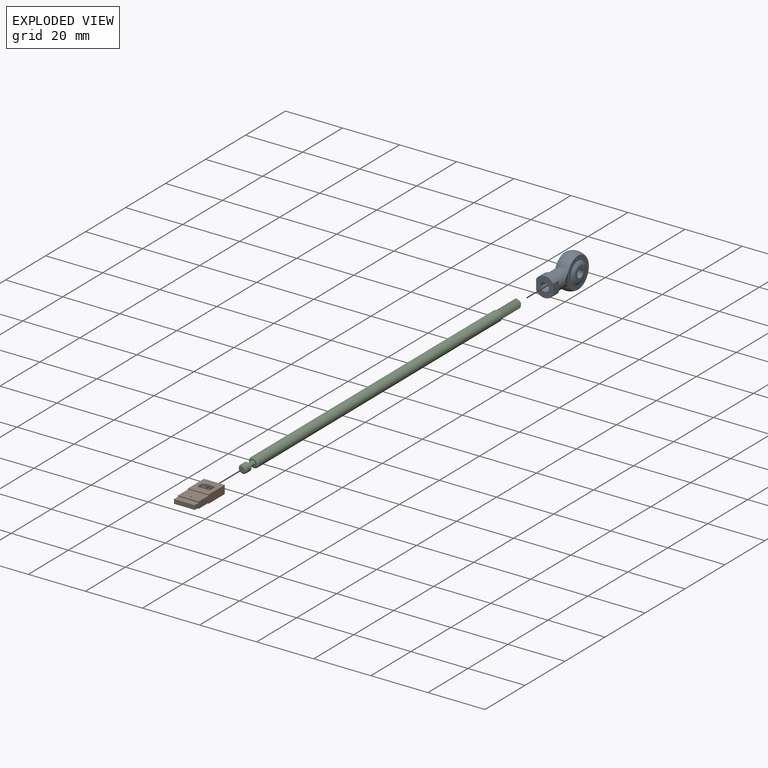
[diagram: subassembly S1 — exploded view]
SUBASSEMBLY S1 TOUR — 3 components, shown here in isolation at its own camera.

INTERNAL MATES
  1. FASTENED "Fastened 2": P8 <-> P2, direction (0.000, -1.000, 0.000) through (-0.16, 4.12, 0.18) mm
  2. FASTENED "Fastened 1": P8 <-> P1, direction (0.000, 1.000, 0.000) through (-0.16, 136.62, 0.18) mm
  3. FASTENED "Fastened 1": P8 <-> P1, direction (0.000, 1.000, 0.000) through (-0.16, 136.62, 0.18) mm
  4. FASTENED "Fastened 2": P8 <-> P2, direction (0.000, -1.000, 0.000) through (-0.16, 4.12, 0.18) mm

ASSEMBLY ORDER (within the subassembly)
  1. P8 — the base component [order heuristic]
  2. P1 — core [order heuristic]
  3. P2 [order verified]
Order-tag legend:
  [order verified] — this step's position reverses a verified removal order: the component was checked to insert without passing through the ones already placed.
  [order heuristic] — the first 2 components form the assembly's core: parts whose collision-free extraction could not be verified, listed in mate-graph order.
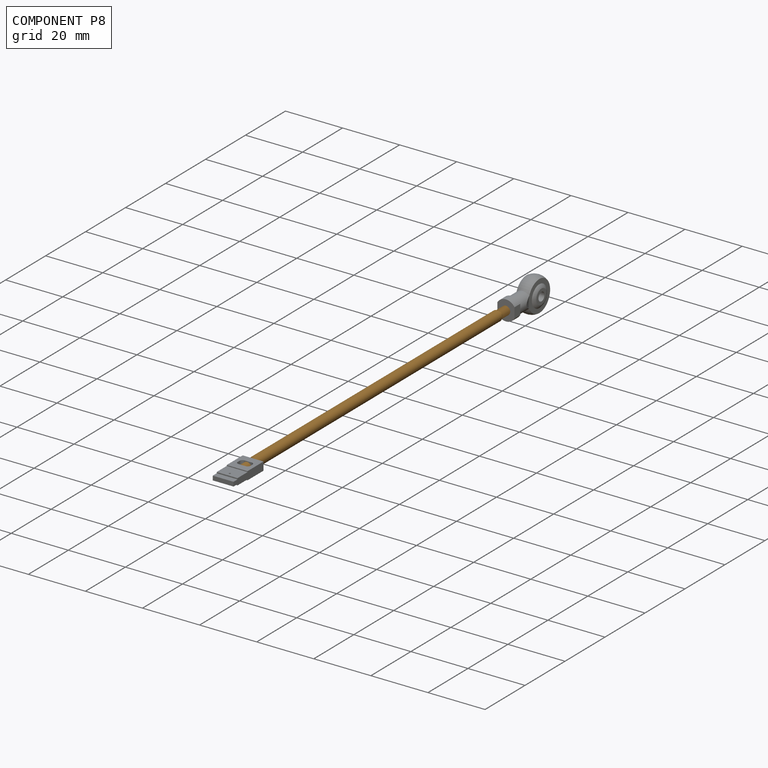
[diagram: component P8 — assembled]
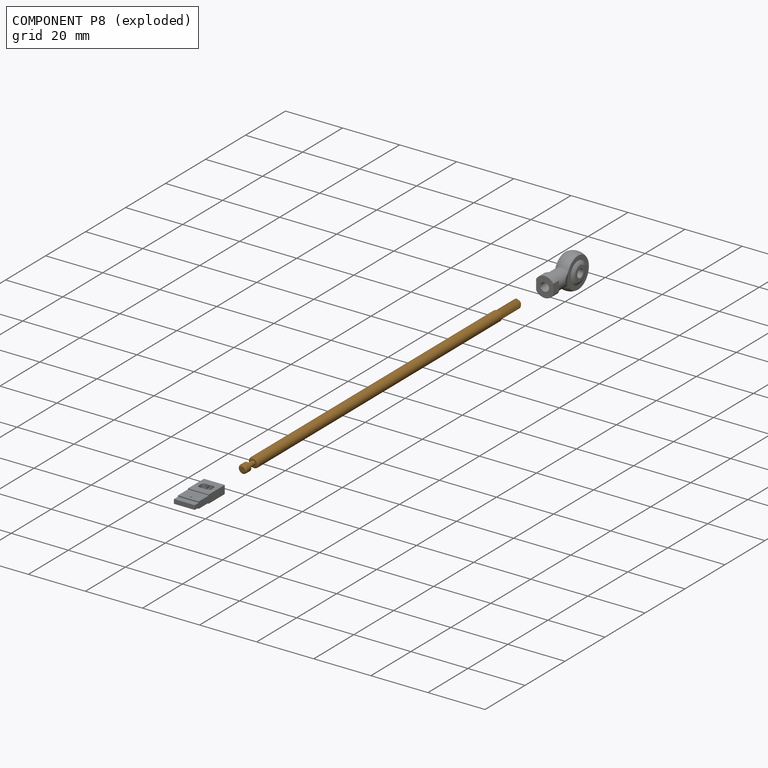
[diagram: component P8 — exploded]
COMPONENT P8 — geometry summary (no construction recipe available for this part):
  bounding box: 138.0 x 3.6 x 3.6 mm
  B-rep topology: 1 solid, 37 faces, 172 edges
  volume: 1321 mm^3 (74% of its bounding box)
  symmetry: revolution-symmetric about the y axis through its bounding-box center; mirror-symmetric across its x mid-plane, z mid-plane
Held by: FASTENED mate "Fastened 2" to P2; FASTENED mate "Fastened 1" to P1; FASTENED mate "Fastened 1" to P1; FASTENED mate "Fastened 2" to P2.
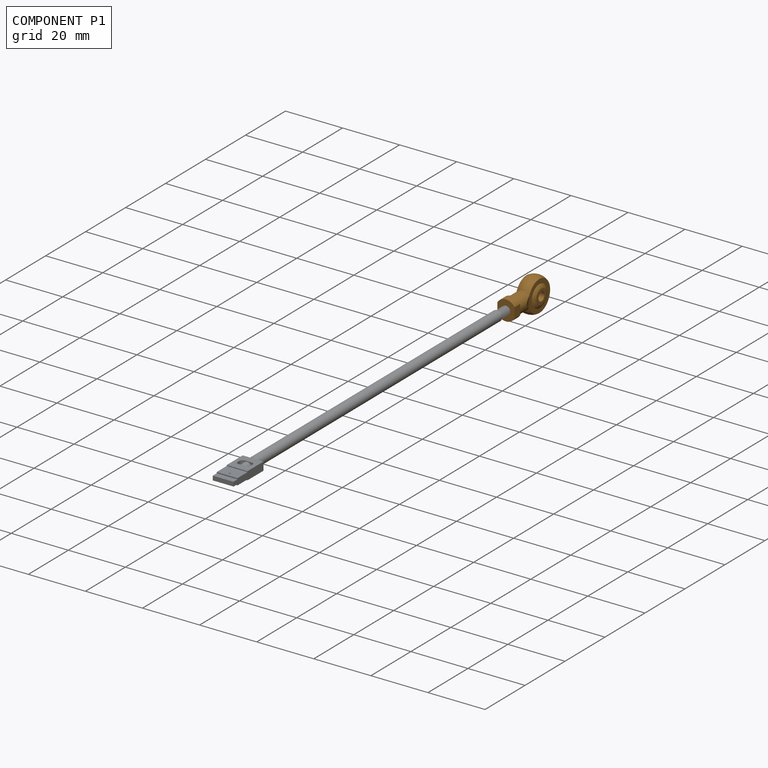
[diagram: component P1 — assembled]
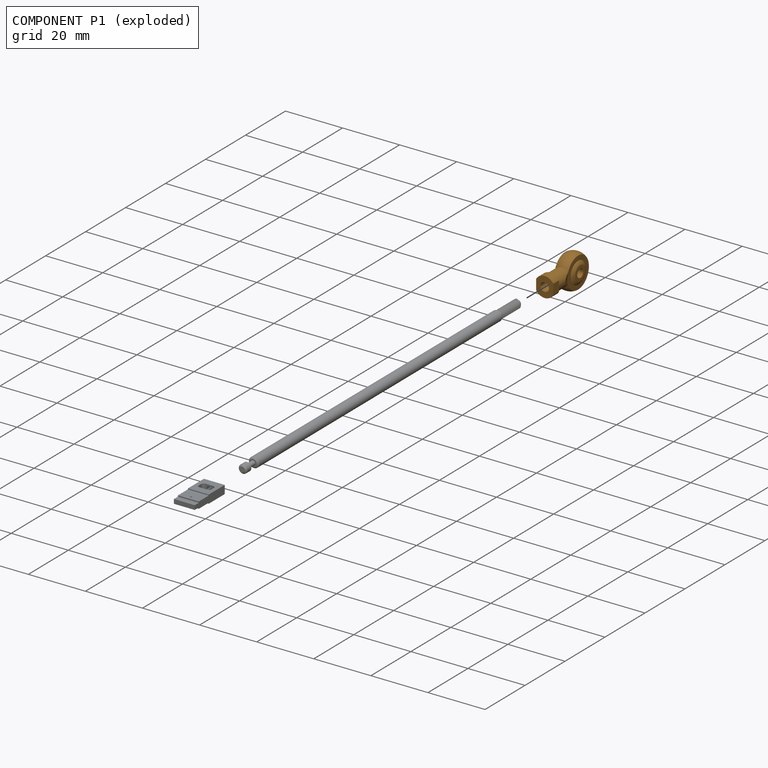
[diagram: component P1 — exploded]
COMPONENT P1 — geometry summary (no construction recipe available for this part):
  bounding box: 18.9 x 10.8 x 6.0 mm
  B-rep topology: 1 solid, 24 faces, 92 edges
  volume: 688 mm^3 (56% of its bounding box)
  symmetry: 2-fold rotationally symmetric about the y axis; mirror-symmetric across its x mid-plane, z mid-plane
Held by: FASTENED mate "Fastened 1" to P8; FASTENED mate "Fastened 1" to P8.
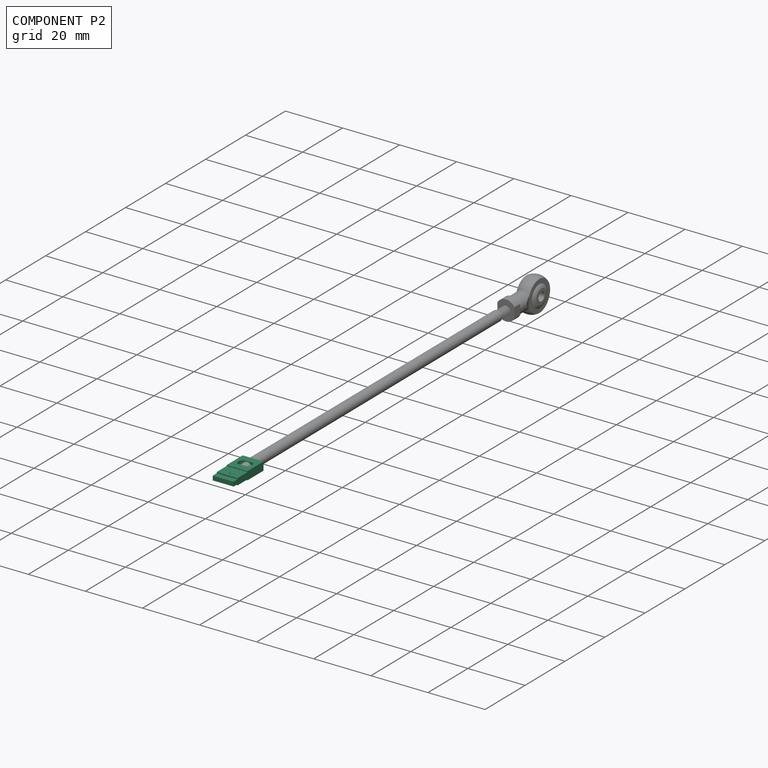
[diagram: component P2 — assembled]
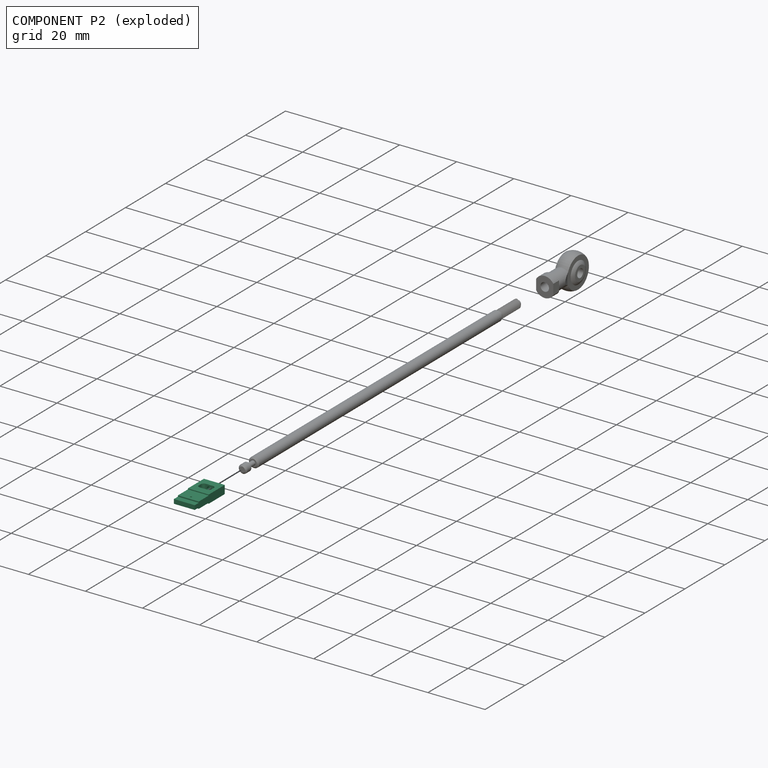
[diagram: component P2 — exploded]
COMPONENT P2 — recipe-attached (CADFS 00161444, mesh-verified: the recipe's output STEP matches this component's geometry to below the mesh-comparison resolution (tessellation chordal tolerance ~0.0254 mm)).
Held by: FASTENED mate "Fastened 2" to P8; FASTENED mate "Fastened 2" to P8.
Construction recipe (FeatureScript — the CAD program that rebuilds this solid; sketch coordinates are in the units given by the * unit suffixes, e.g. mm):

FeatureScript 1511;
import(path : "onshape/std/geometry.fs", version : "1511.0");
import(path : "onshape/std/common.fs", version : "1511.0");
const mm = millimeter;
const VERTEX = EntityType.VERTEX;
const EDGE = EntityType.EDGE;
const FACE = EntityType.FACE;
const BODY = EntityType.BODY;
function v(x, y){return vector(x, y);}
function OD(order){return orderDisambiguation(order);}
function OSD(set){return originalSetDisambiguation(set);}
function TD(topology){return topologyDisambiguation(topology);}
function TDD(query){return trueDependencyDisambiguation(query);}
function sQuery(a, b, c) {return sketchEntityQuery(a, b, c);}

annotation { "Feature Type Name" : "Feature", "Feature Type Description" : "" }
export const myFeature = defineFeature(function(context is Context, id is Id, definition is map)
    precondition{}
    {
        {
            assignVariable(context, id + "F0", {"name" : "Main_Width", "anyValue" : 7.3});
        }
        {
            var Q0;
            Q0=qCreatedBy(makeId("Right.planeOp"),FACE);
            var sketch = newSketch(context, id + "F1", { "sketchPlane" : qUnion([Q0])});
            skLineSegment(sketch, "E0", {"start": v(0, 0) * mm, "end": v(0, 1.45) * mm});
            skLineSegment(sketch, "E1", {"start": v(0, 1.45) * mm, "end": v(8, 1.45) * mm});
            skLineSegment(sketch, "E2", {"start": v(8, 1.45) * mm, "end": v(8, 1.15) * mm});
            skLineSegment(sketch, "E3", {"start": v(8, 1.15) * mm, "end": v(13, 1.15) * mm});
            skLineSegment(sketch, "E4", {"start": v(13, 1.15) * mm, "end": v(13, 0.75) * mm});
            skLineSegment(sketch, "E5", {"start": v(13, 0.75) * mm, "end": v(15, 0.75) * mm});
            skLineSegment(sketch, "E6", {"start": v(15, 0.75) * mm, "end": v(15, 0) * mm});
            skLineSegment(sketch, "E7", {"start": v(0, 0) * mm, "end": v(15, 0) * mm, "construction": true});
            skLineSegment(sketch, "E8.MirrorCS", {"start": v(0, -1.45) * mm, "end": v(8, -1.45) * mm});
            skLineSegment(sketch, "E9.MirrorCS", {"start": v(8, -1.45) * mm, "end": v(8, -1.15) * mm});
            skLineSegment(sketch, "E10.MirrorCS", {"start": v(0, 0) * mm, "end": v(0, -1.45) * mm});
            skLineSegment(sketch, "E11.MirrorCS", {"start": v(13, -0.75) * mm, "end": v(15, -0.75) * mm});
            skLineSegment(sketch, "E12.MirrorCS", {"start": v(15, -0.75) * mm, "end": v(15, 0) * mm});
            skLineSegment(sketch, "E13.MirrorCS", {"start": v(13, -1.15) * mm, "end": v(13, -0.75) * mm});
            skLineSegment(sketch, "E14.MirrorCS", {"start": v(8, -1.15) * mm, "end": v(13, -1.15) * mm});
            skSolve(sketch);
        }
        {
            var Q0;
            Q0=makeQuery(id+"F1.imprint","IMPRINT",FACE,{"disambiguationData":[TD([[makeQuery(id+"F1.imprint","IMPRINT",EDGE,{"derivedFrom":sQuery(id+"F1.wireOp",EDGE,"E0")}),-1.0]])]});
            extrude(context, id + "F2", {"entities" : qUnion([Q0]), "depth" : (getVariable(context, 'Main_Width')) * mm});
        }
        {
            var Q0;
            Q0=makeQuery(id+"F2.opExtrude","SWEPT_FACE",FACE,{"disambiguationData":[OSD([sQuery(id+"F1.wireOp",EDGE,"E1")])]});
            var sketch = newSketch(context, id + "F3", { "sketchPlane" : qUnion([Q0])});
            skCircle(sketch, "E15", {"center": v(3.65, 11.65) * mm, "radius": 0.3 * mm});
            skLineSegment(sketch, "E16.0", {"start": v(7.3, 0) * mm, "end": v(0, 0) * mm});
            skLineSegment(sketch, "E17", {"start": v(3.65, 11.65) * mm, "end": v(3.65, 0) * mm, "construction": true});
            skPoint(sketch, "E17.endSnap0", {"position": v(3.65, 0) * mm});
            skLineSegment(sketch, "E18.bottom", {"start": v(2.4, 2.5) * mm, "end": v(4.9, 2.5) * mm});
            skLineSegment(sketch, "E18.top", {"start": v(2.4, 5.5) * mm, "end": v(4.9, 5.5) * mm});
            skLineSegment(sketch, "E18.left", {"start": v(2.4, 2.5) * mm, "end": v(2.4, 5.5) * mm, "construction": true});
            skLineSegment(sketch, "E18.right", {"start": v(4.9, 2.5) * mm, "end": v(4.9, 5.5) * mm, "construction": true});
            skPoint(sketch, "E18.middle", {"position": v(3.65, 4) * mm});
            skArc(sketch, "E19", {"start": v(1.4, 3.5) * mm, "mid": v(1.7, 2.8) * mm, "end": v(2.4, 2.5) * mm});
            skArc(sketch, "E20", {"start": v(2.4, 5.5) * mm, "mid": v(1.7, 5.2) * mm, "end": v(1.4, 4.5) * mm});
            skLineSegment(sketch, "E21", {"start": v(1.4, 3.5) * mm, "end": v(1.4, 4.5) * mm});
            skArc(sketch, "E22.MirrorCS", {"start": v(4.9, 5.5) * mm, "mid": v(5.6, 5.2) * mm, "end": v(5.9, 4.5) * mm});
            skLineSegment(sketch, "E23.MirrorCS", {"start": v(5.9, 3.5) * mm, "end": v(5.9, 4.5) * mm});
            skArc(sketch, "E24.MirrorCS", {"start": v(5.9, 3.5) * mm, "mid": v(5.6, 2.8) * mm, "end": v(4.9, 2.5) * mm});
            skSolve(sketch);
        }
        {
            var Q0;
            Q0=makeQuery(id+"F3.imprint","IMPRINT",FACE,{"disambiguationData":[TD([[makeQuery(id+"F3.imprint","IMPRINT",EDGE,{"derivedFrom":sQuery(id+"F3.wireOp",EDGE,"E18.bottom")}),1.0]])]});
            var Q1;
            Q1=makeQuery(id+"F3.imprint","IMPRINT",FACE,{"disambiguationData":[TD([[makeQuery(id+"F3.imprint","IMPRINT",EDGE,{"derivedFrom":sQuery(id+"F3.wireOp",EDGE,"E15")}),1.0]])]});
            extrude(context, id + "F4", {"entities" : qUnion([Q0, Q1]), "operationType" : NewBodyOperationType.REMOVE, "endBound" : BoundingType.THROUGH_ALL, "oppositeDirection" : true, "depth" : 25 * mm});
        }
        {
            var Q0;
            Q0=makeQuery(id+"F2.opExtrude","SWEPT_FACE",FACE,{"disambiguationData":[OSD([sQuery(id+"F1.wireOp",EDGE,"E0"),sQuery(id+"F1.wireOp",EDGE,"E10.MirrorCS")])]});
            var sketch = newSketch(context, id + "F5", { "sketchPlane" : qUnion([Q0])});
            skLineSegment(sketch, "E25.0.0", {"start": v(0, 1.45) * mm, "end": v(0, -1.45) * mm});
            skLineSegment(sketch, "E25.0.1", {"start": v(0, -1.45) * mm, "end": v(7.3, -1.45) * mm});
            skLineSegment(sketch, "E25.0.2", {"start": v(7.3, -1.45) * mm, "end": v(7.3, 1.45) * mm});
            skLineSegment(sketch, "E25.0.3", {"start": v(7.3, 1.45) * mm, "end": v(0, 1.45) * mm});
            skArc(sketch, "E26", {"start": v(2.9, 0.5) * mm, "mid": v(3.65, -0.9) * mm, "end": v(4.4, 0.5) * mm});
            skLineSegment(sketch, "E27", {"start": v(3.65, 1.45) * mm, "end": v(3.65, -1.45) * mm, "construction": true});
            skLineSegment(sketch, "E28", {"start": v(2.9, 0.5) * mm, "end": v(2.9, 1.45) * mm});
            skLineSegment(sketch, "E29", {"start": v(4.4, 0.5) * mm, "end": v(4.4, 1.45) * mm});
            skSolve(sketch);
        }
        {
            var Q0;
            Q0=makeQuery(id+"F5.imprint","IMPRINT",FACE,{"disambiguationData":[TD([[makeQuery(id+"F5.imprint","IMPRINT",EDGE,{"derivedFrom":sQuery(id+"F5.wireOp",EDGE,"E26")}),1.0]])]});
            extrude(context, id + "F6", {"entities" : qUnion([Q0]), "operationType" : NewBodyOperationType.REMOVE, "endBound" : BoundingType.UP_TO_NEXT, "oppositeDirection" : true, "depth" : 25 * mm});
        }
    });
PROVENANCE & LICENSES
Assembly (occurrences, transforms, mates, per-part STEP geometry): AutoMate dataset, Zenodo record 7776208, CC0.
Construction recipes: CADFS (HuggingFace VladPyatov/CADFS, CC-BY-4.0, layered over the ABC dataset), FeatureScript reconstruction programs keyed by ABC model id.
Join: ABC meta listings map ABC model id -> Onshape documentId; within a shared document, parts are matched by geometric signature (bounding-box dims + volume at 0.1% relative tolerance, exact B-rep face/solid counts).
Verification: 5 of this assembly's 10 components carry a recipe attachment, and every attachment is mesh-verified: the CADFS STEP and the AutoMate member STEP were compared as meshes in their shared local frame (symmetric sampled-point-to-mesh distance); worst across the 5 attachments: below the mesh-comparison resolution (tessellation chordal tolerance ~0.0332 mm) on a 22 mm part.
Renders: orthographic iso camera (az 35 / el 25); the floor grid conveys scale (grid pitch printed in each image; no ruler). In the exploded view each component is displaced by its stored offset vector: the offsets alone carry the explosion direction (mate normal/axis signs are not orientation cues and do not encode it), and separation distances are assigned per mate-chain, not proportionally to assembly-order depth.
